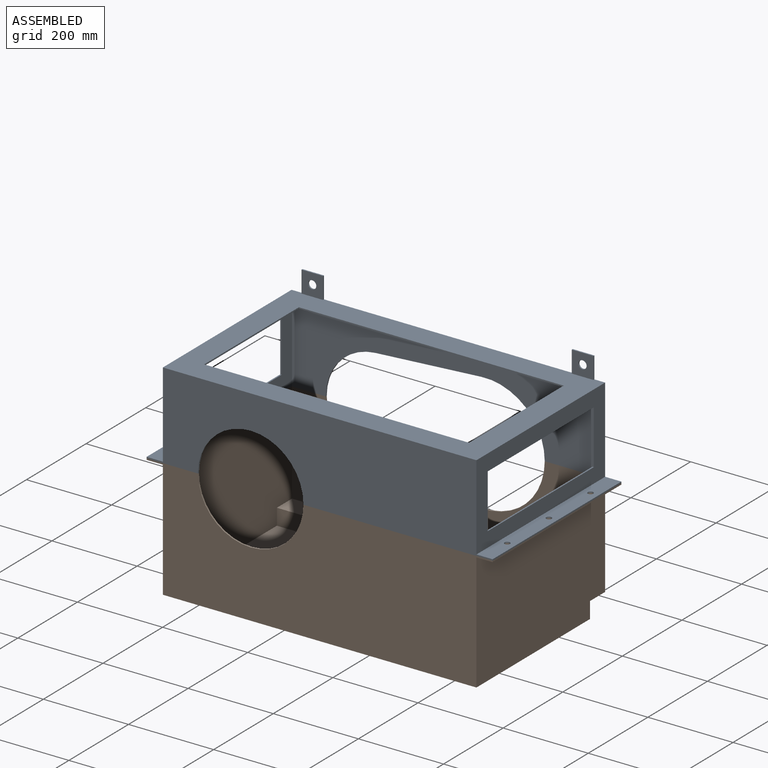
[diagram: assembled view]
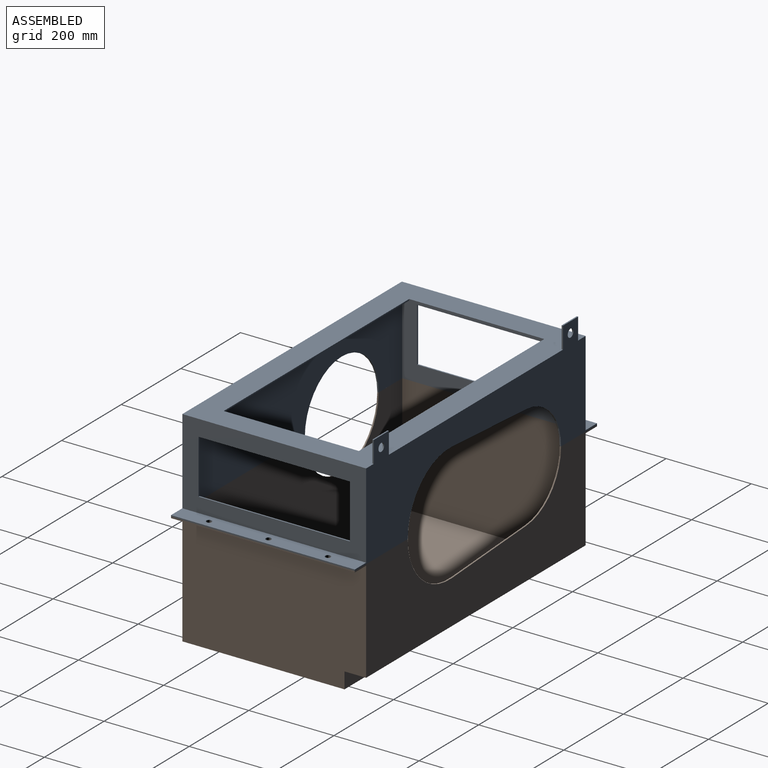
[diagram: assembled view, second angle]
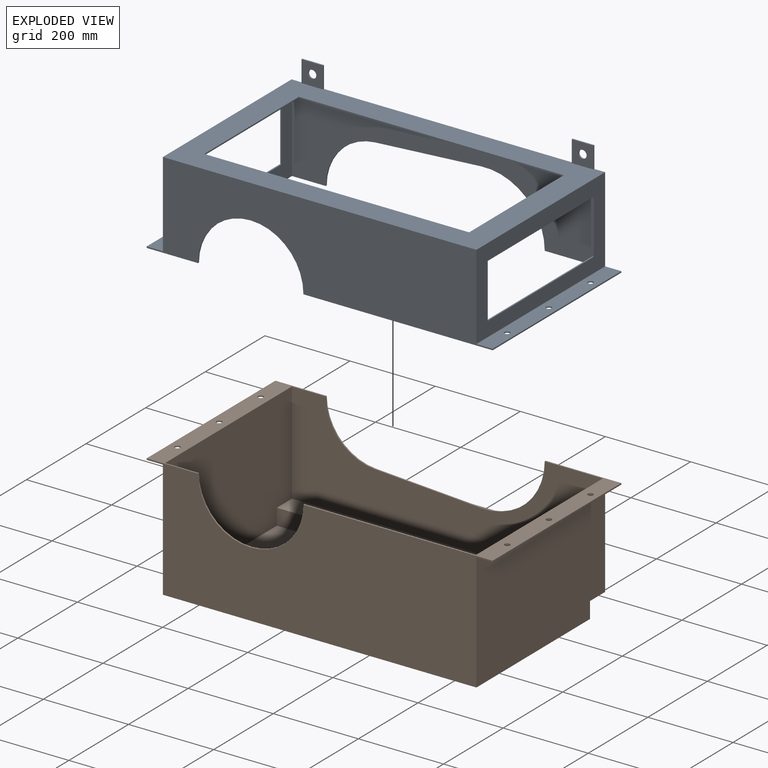
[diagram: exploded view]
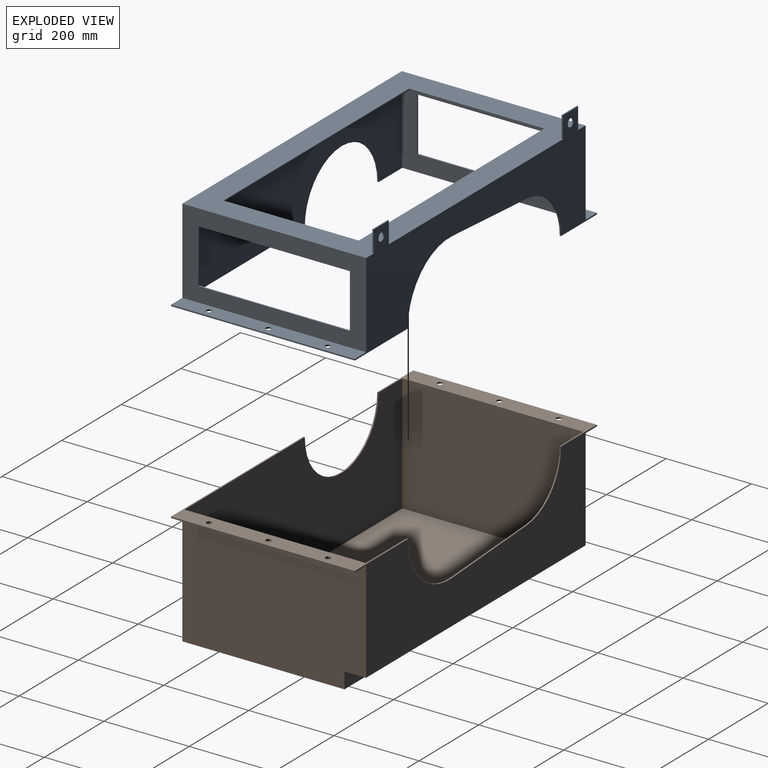
[diagram: exploded view, second angle]
ASSEMBLY  parts=2 mates=3
PART A: 48 faces, bbox 812.8x431.8x254 mm
  f0: plane 431.8x200.03mm, normal (1,0,0), area 41209.6mm2, adj f4,f19,f20,f31,f44,f45,f46,f47
  f1: plane 431.8x200.03mm, normal (-1,0,0), area 41209.6mm2, adj f4,f19,f20,f26,f40,f41,f42,f43
  f2: plane 425.45x200.03mm, normal (-1,0,0), area 39939.4mm2, adj f5,f6,f8,f21,f44,f45,f46,f47
  f3: plane 425.45x200.03mm, normal (1,0,0), area 39939.4mm2, adj f5,f6,f7,f21,f40,f41,f42,f43
  f4: plane 736.6x431.8mm, normal (0,0,1), area 120161mm2, adj f0,f1,f9,f10,f11,f13,f14,f17
  f5: plane 730.25x425.45mm, normal (0,0,-1), area 113104.6mm2, adj f2,f3,f6,f21,f36,f37,f38,f39
  f6: plane 730.25x200.03mm, normal (0,-1,0), area 85582.6mm2, adj f2,f3,f5,f7,f8,f32,f33,f35
  f7: plane 431.8x120.65mm, normal (0,0,-1), area 17946.5mm2, adj f3,f6,f19,f20,f21,f22,f23,f24
  f8: plane 444.5x431.8mm, normal (0,0,-1), area 19156.2mm2, adj f2,f6,f19,f20,f21,f27,f28,f29
  f9: plane 50.8x50.8mm, normal (0,-1,0), area 2295.6mm2, adj f4,f11,f12,f13,f18
  f10: plane 50.8x50.8mm, normal (0,-1,0), area 2295.6mm2, adj f4,f14,f15,f16,f17
  f11: plane 50.8x3.18mm, normal (1,0,0), area 161.3mm2, adj f4,f9,f12,f19
  f12: plane 50.8x3.18mm, normal (0,0,1), area 161.3mm2, adj f9,f11,f13,f19
  f13: plane 50.8x3.18mm, normal (-1,0,0), area 161.3mm2, adj f4,f9,f12,f19
  f14: plane 50.8x3.18mm, normal (1,0,0), area 161.3mm2, adj f4,f10,f15,f19
  f15: plane 50.8x3.18mm, normal (0,0,1), area 161.3mm2, adj f10,f14,f17,f19
  f16: cylinder r=9.53mm len=19.05mm, axis (0,1,0), area 190mm2, adj f10,f19
  f17: plane 50.8x3.18mm, normal (-1,0,0), area 161.3mm2, adj f4,f10,f15,f19
  f18: cylinder r=9.53mm len=19.05mm, axis (0,1,0), area 190mm2, adj f9,f19
  f19: plane 812.8x254mm, normal (0,1,0), area 94024.6mm2, adj f0,f1,f4,f7,f8,f11,f12,f13
  f20: plane 812.8x203.2mm, normal (0,-1,0), area 125834.6mm2, adj f0,f1,f4,f7,f8,f22,f26,f27
  f21: plane 730.25x200.03mm, normal (0,1,0), area 121983.8mm2, adj f2,f3,f5,f7,f8,f34
  f22: plane 431.8x3.18mm, normal (-1,0,0), area 1371mm2, adj f7,f19,f20,f26
  f23: cylinder r=6.35mm len=12.7mm, axis (0,0,-1), area 126.7mm2, adj f7,f26
  f24: cylinder r=6.35mm len=12.7mm, axis (0,0,-1), area 126.7mm2, adj f7,f26
  f25: cylinder r=6.35mm len=12.7mm, axis (0,0,-1), area 126.7mm2, adj f7,f26
  f26: plane 431.8x38.1mm, normal (0,0,1), area 16071.5mm2, adj f1,f19,f20,f22,f23,f24,f25
  f27: plane 431.8x3.18mm, normal (1,0,0), area 1371mm2, adj f8,f19,f20,f31
  f28: cylinder r=6.35mm len=12.7mm, axis (0,0,-1), area 126.7mm2, adj f8,f31
  f29: cylinder r=6.35mm len=12.7mm, axis (0,0,-1), area 126.7mm2, adj f8,f31
  f30: cylinder r=6.35mm len=12.7mm, axis (0,0,-1), area 126.7mm2, adj f8,f31
  f31: plane 431.8x38.1mm, normal (0,0,1), area 16071.5mm2, adj f0,f19,f20,f27,f28,f29,f30
  f32: cylinder r=139.7mm len=148.54mm, axis (0,1,0), area 724.8mm2, adj f6,f8,f19,f33
  f33: plane 249.82x15.84mm, normal (0.06,0,-1), area 794.8mm2, adj f6,f19,f32,f35
  f34: cylinder r=123.83mm len=247.65mm, axis (0,1,0), area 1235.1mm2, adj f7,f8,f20,f21
  f35: cylinder r=123.83mm len=123.58mm, axis (0,1,0), area 592.7mm2, adj f6,f7,f19,f33
  f36: plane 622.3x3.18mm, normal (0,-1,0), area 1975.8mm2, adj f4,f5,f37,f39
  f37: plane 317.5x3.18mm, normal (1,0,0), area 1008.1mm2, adj f4,f5,f36,f38
  f38: plane 622.3x3.18mm, normal (0,1,0), area 1975.8mm2, adj f4,f5,f37,f39
  f39: plane 317.5x3.18mm, normal (-1,0,0), area 1008.1mm2, adj f4,f5,f36,f38
  f40: plane 127x3.18mm, normal (0,-1,0), area 403.2mm2, adj f1,f3,f41,f43
  f41: plane 355.6x3.18mm, normal (0,0,1), area 1129mm2, adj f1,f3,f40,f42
  f42: plane 127x3.18mm, normal (0,1,0), area 403.2mm2, adj f1,f3,f41,f43
  f43: plane 355.6x3.18mm, normal (0,0,-1), area 1129mm2, adj f1,f3,f40,f42
  f44: plane 355.6x3.18mm, normal (0,0,-1), area 1129mm2, adj f0,f2,f45,f47
  f45: plane 127x3.18mm, normal (0,1,0), area 403.2mm2, adj f0,f2,f44,f46
  f46: plane 355.6x3.18mm, normal (0,0,1), area 1129mm2, adj f0,f2,f45,f47
  f47: plane 127x3.18mm, normal (0,-1,0), area 403.2mm2, adj f0,f2,f44,f46
PART B: 30 faces, bbox 431.8x812.8x279.4 mm
  f0: plane 812.8x241.3mm, normal (1,0,0), area 117497.8mm2, adj f1,f2,f3,f4,f8,f19,f20,f21
  f1: plane 444.5x431.8mm, normal (0,0,1), area 19156.2mm2, adj f0,f5,f9,f10,f14,f21,f22,f23
  f2: plane 431.8x276.23mm, normal (0,-1,0), area 117338.5mm2, adj f0,f5,f6,f7,f8,f25
  f3: plane 431.8x276.23mm, normal (0,1,0), area 117338.5mm2, adj f0,f5,f6,f7,f8,f20
  f4: plane 431.8x120.65mm, normal (0,0,1), area 17946.5mm2, adj f0,f5,f9,f10,f15,f16,f17,f18
  f5: plane 812.8x279.4mm, normal (-1,0,0), area 181963.5mm2, adj f1,f2,f3,f4,f6,f19,f20,f21
  f6: plane 736.6x381mm, normal (0,0,-1), area 280644.6mm2, adj f2,f3,f5,f7
  f7: plane 736.6x38.1mm, normal (1,0,0), area 28064.5mm2, adj f2,f3,f6,f8
  f8: plane 736.6x50.8mm, normal (0,0,-1), area 37419.3mm2, adj f0,f2,f3,f7
  f9: plane 730.25x238.13mm, normal (-1,0,0), area 113405.1mm2, adj f1,f4,f13,f14,f15,f26,f27,f29
  f10: plane 730.25x276.23mm, normal (1,0,0), area 177628.9mm2, adj f1,f4,f11,f14,f15,f28
  f11: plane 730.25x374.65mm, normal (0,0,1), area 273588.2mm2, adj f10,f12,f14,f15
  f12: plane 730.25x38.1mm, normal (-1,0,0), area 27822.5mm2, adj f11,f13,f14,f15
  f13: plane 730.25x50.8mm, normal (0,0,1), area 37096.7mm2, adj f9,f12,f14,f15
  f14: plane 425.45x276.23mm, normal (0,1,0), area 115584.4mm2, adj f1,f9,f10,f11,f12,f13
  f15: plane 425.45x276.23mm, normal (0,-1,0), area 115584.4mm2, adj f4,f9,f10,f11,f12,f13
  f16: cylinder r=6.35mm len=12.7mm, axis (0,0,1), area 126.7mm2, adj f4,f20
  f17: cylinder r=6.35mm len=12.7mm, axis (0,0,1), area 126.7mm2, adj f4,f20
  f18: cylinder r=6.35mm len=12.7mm, axis (0,0,1), area 126.7mm2, adj f4,f20
  f19: plane 431.8x3.18mm, normal (0,1,0), area 1371mm2, adj f0,f4,f5,f20
  f20: plane 431.8x38.1mm, normal (0,0,-1), area 16071.5mm2, adj f0,f3,f5,f16,f17,f18,f19
  f21: plane 431.8x3.18mm, normal (0,-1,0), area 1371mm2, adj f0,f1,f5,f25
  f22: cylinder r=6.35mm len=12.7mm, axis (0,0,1), area 126.7mm2, adj f1,f25
  f23: cylinder r=6.35mm len=12.7mm, axis (0,0,1), area 126.7mm2, adj f1,f25
  f24: cylinder r=6.35mm len=12.7mm, axis (0,0,1), area 126.7mm2, adj f1,f25
  f25: plane 431.8x38.1mm, normal (0,0,-1), area 16071.5mm2, adj f0,f2,f5,f21,f22,f23,f24
  f26: cylinder r=139.7mm len=148.54mm, axis (1,0,0), area 724.8mm2, adj f0,f1,f9,f27
  f27: plane 249.82x15.84mm, normal (0,-0.06,1), area 794.8mm2, adj f0,f9,f26,f29
  f28: cylinder r=123.83mm len=247.65mm, axis (1,0,0), area 1235.1mm2, adj f1,f4,f5,f10
  f29: cylinder r=123.83mm len=123.58mm, axis (1,0,0), area 592.7mm2, adj f0,f4,f9,f27
PLACE A t=(-30.99,431.8,-123.5)mm
PLACE B rot(axis=(0,0,1),90deg) t=(-30.99,215.9,-250.5)mm
MATE cylindrical A.f30 <-> B.f24  axis (0,0,1) through (356.36,355.6,-107.62)mm
MATE parallel A.f19 <-> B.f0  axis (0,1,0) through (-15.71,431.8,22.43)mm
MATE planar A.f8 <-> B.f1  axis (0,0,-1) through (337.87,206.43,-110.8)mm
